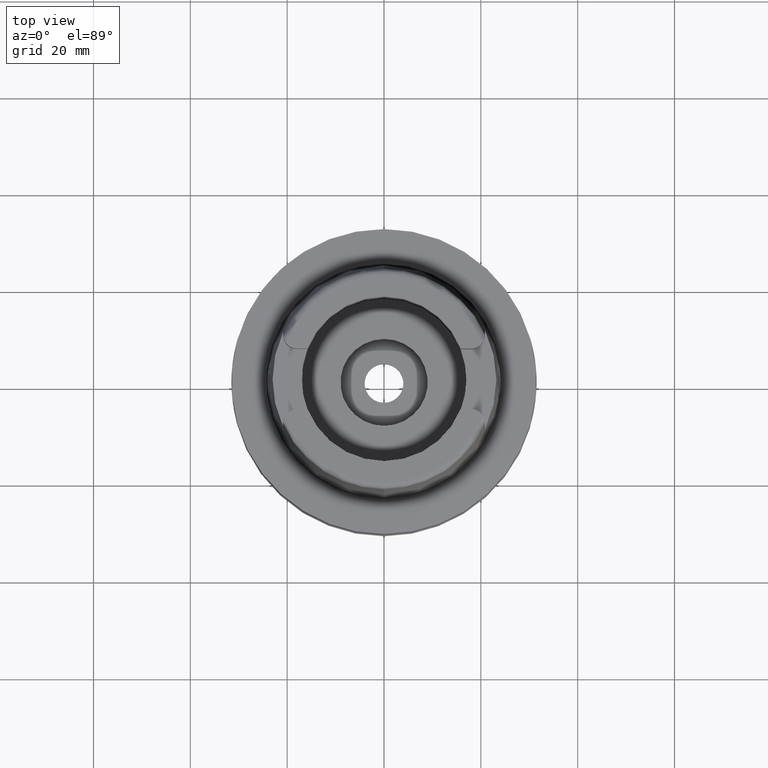
[diagram: clean part render]
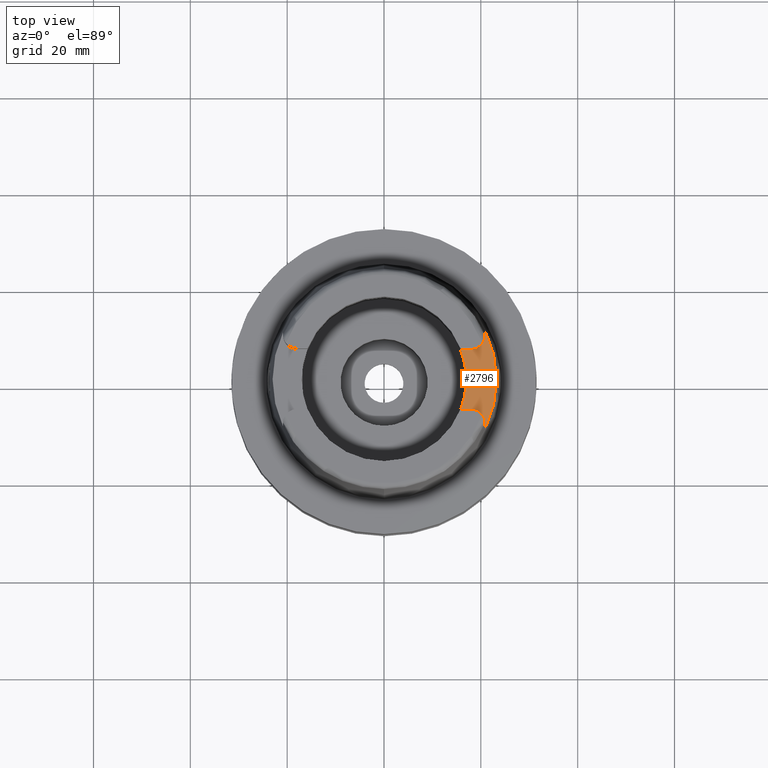
[diagram: same view with one face highlighted and labeled with its STEP entity id]
A machine part, top view. The second image highlights one B-rep face of the part: STEP entity #2796.
In plain terms, the highlighted planar face has unit normal (0, 0, 1).
Its self-contained STEP definition (entity closure, byte-faithful):
#339=CARTESIAN_POINT('',(0.E0,0.E0,2.2E1));
#340=DIRECTION('',(0.E0,0.E0,1.E0));
#341=DIRECTION('',(9.294994374136E-1,-3.688235294118E-1,0.E0));
#342=AXIS2_PLACEMENT_3D('',#339,#340,#341);
#347=DIRECTION('',(1.E0,-8.522579531193E-14,0.E0));
#348=VECTOR('',#347,2.188509563969E0);
#349=CARTESIAN_POINT('',(1.580149043603E1,6.27E0,2.2E1));
#350=LINE('',#349,#348);
#354=CARTESIAN_POINT('',(1.799E1,9.15E0,2.2E1));
#355=DIRECTION('',(0.E0,0.E0,1.E0));
#356=DIRECTION('',(0.E0,-1.E0,0.E0));
#357=AXIS2_PLACEMENT_3D('',#354,#355,#356);
#362=DIRECTION('',(-3.871492741933E-6,9.999999999925E-1,-7.680963920704E-14));
#363=VECTOR('',#362,1.017576722668E0);
#364=CARTESIAN_POINT('',(2.087E1,9.15E0,2.2E1));
#365=LINE('',#364,#363);
#369=CARTESIAN_POINT('',(0.E0,0.E0,2.2E1));
#370=DIRECTION('',(0.E0,0.E0,-1.E0));
#371=DIRECTION('',(8.989877876695E-1,4.379736951247E-1,0.E0));
#372=AXIS2_PLACEMENT_3D('',#369,#370,#371);
#377=DIRECTION('',(-1.773956706265E-5,9.999999998427E-1,7.681727285564E-14));
#378=VECTOR('',#377,1.017475601881E0);
#379=CARTESIAN_POINT('',(2.087001804958E1,-1.016747560172E1,2.2E1));
#380=LINE('',#379,#378);
#384=CARTESIAN_POINT('',(1.799E1,-9.15E0,2.2E1));
#385=DIRECTION('',(0.E0,0.E0,1.E0));
#386=DIRECTION('',(1.E0,0.E0,0.E0));
#387=AXIS2_PLACEMENT_3D('',#384,#385,#386);
#392=DIRECTION('',(-1.E0,-8.806665515566E-14,0.E0));
#393=VECTOR('',#392,2.188509563969E0);
#394=CARTESIAN_POINT('',(1.799E1,-6.27E0,2.2E1));
#395=LINE('',#394,#393);
#2306=CARTESIAN_POINT('',(2.087E1,1.016755860605E1,2.2E1));
#2307=CARTESIAN_POINT('',(2.087E1,-1.016755860605E1,2.2E1));
#2308=VERTEX_POINT('',#2306);
#2309=VERTEX_POINT('',#2307);
#2314=CARTESIAN_POINT('',(1.580149043603E1,-6.27E0,2.2E1));
#2315=CARTESIAN_POINT('',(1.580149043603E1,6.27E0,2.2E1));
#2316=VERTEX_POINT('',#2314);
#2317=VERTEX_POINT('',#2315);
#2318=CARTESIAN_POINT('',(1.799E1,6.27E0,2.2E1));
#2319=VERTEX_POINT('',#2318);
#2320=CARTESIAN_POINT('',(2.087E1,9.15E0,2.2E1));
#2321=VERTEX_POINT('',#2320);
#2322=CARTESIAN_POINT('',(2.087E1,-9.15E0,2.2E1));
#2323=VERTEX_POINT('',#2322);
#2324=CARTESIAN_POINT('',(1.799E1,-6.27E0,2.2E1));
#2325=VERTEX_POINT('',#2324);
#2776=CARTESIAN_POINT('',(0.E0,0.E0,2.2E1));
#2777=DIRECTION('',(0.E0,0.E0,1.E0));
#2778=DIRECTION('',(1.E0,0.E0,0.E0));
#2779=AXIS2_PLACEMENT_3D('',#2776,#2777,#2778);
#2780=PLANE('',#2779);
#2781=ORIENTED_EDGE('',*,*,#2761,.T.);
#2783=ORIENTED_EDGE('',*,*,#2782,.T.);
#2785=ORIENTED_EDGE('',*,*,#2784,.T.);
#2787=ORIENTED_EDGE('',*,*,#2786,.T.);
#2789=ORIENTED_EDGE('',*,*,#2788,.T.);
#2791=ORIENTED_EDGE('',*,*,#2790,.T.);
#2792=ORIENTED_EDGE('',*,*,#2732,.T.);
#2793=ORIENTED_EDGE('',*,*,#2750,.T.);
#2794=EDGE_LOOP('',(#2781,#2783,#2785,#2787,#2789,#2791,#2792,#2793));
#2795=FACE_OUTER_BOUND('',#2794,.F.);
#343=CIRCLE('',#342,1.7E1);
#358=CIRCLE('',#357,2.88E0);
#373=CIRCLE('',#372,2.321499834175E1);
#388=CIRCLE('',#387,2.88E0);
#2732=EDGE_CURVE('',#2323,#2325,#388,.T.);
#2750=EDGE_CURVE('',#2325,#2316,#395,.T.);
#2761=EDGE_CURVE('',#2316,#2317,#343,.T.);
#2782=EDGE_CURVE('',#2317,#2319,#350,.T.);
#2784=EDGE_CURVE('',#2319,#2321,#358,.T.);
#2786=EDGE_CURVE('',#2321,#2308,#365,.T.);
#2788=EDGE_CURVE('',#2308,#2309,#373,.T.);
#2790=EDGE_CURVE('',#2309,#2323,#380,.T.);
#2796=ADVANCED_FACE('',(#2795),#2780,.T.);